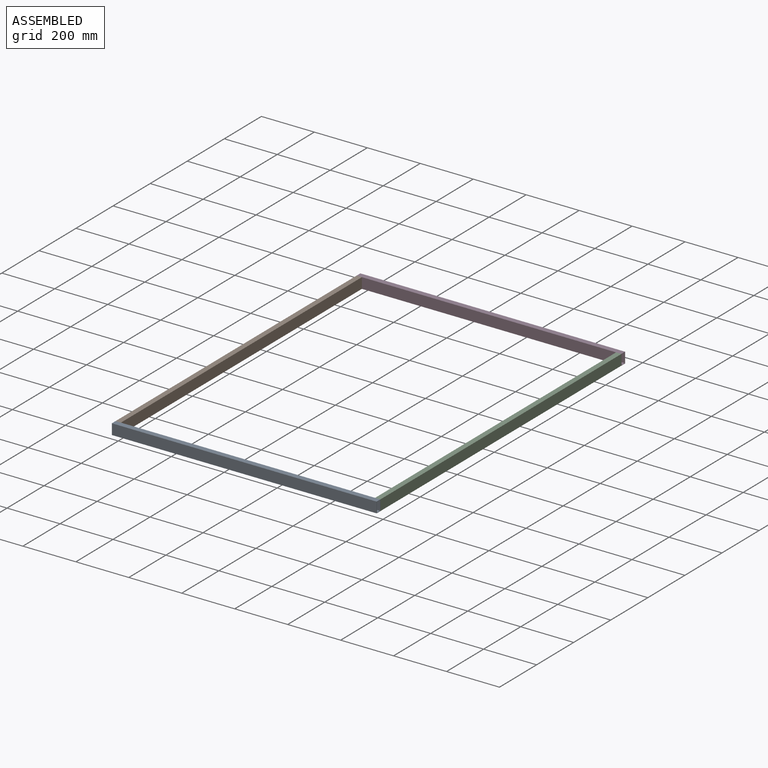
[diagram: assembled view]
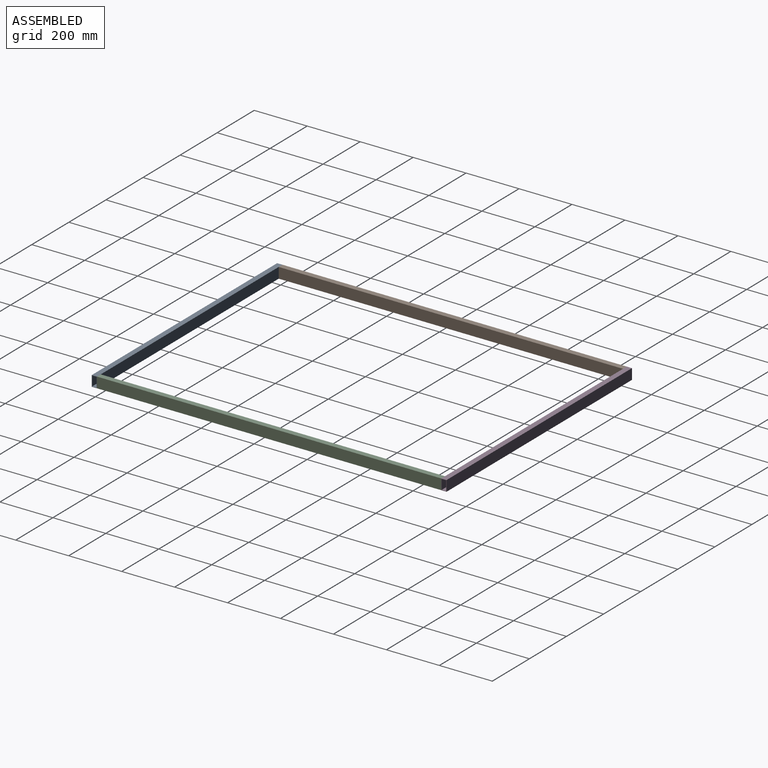
[diagram: assembled view, second angle]
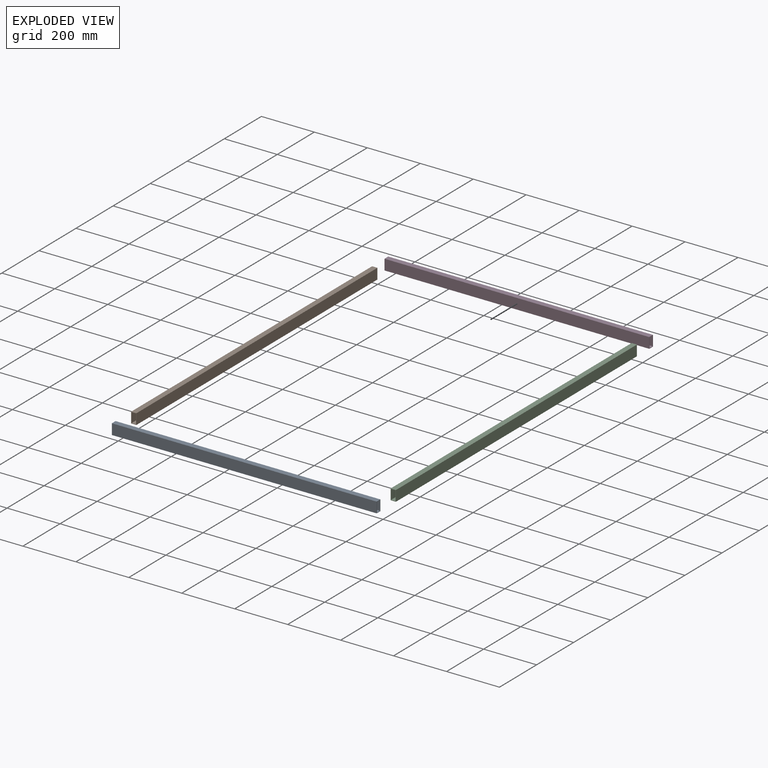
[diagram: exploded view]
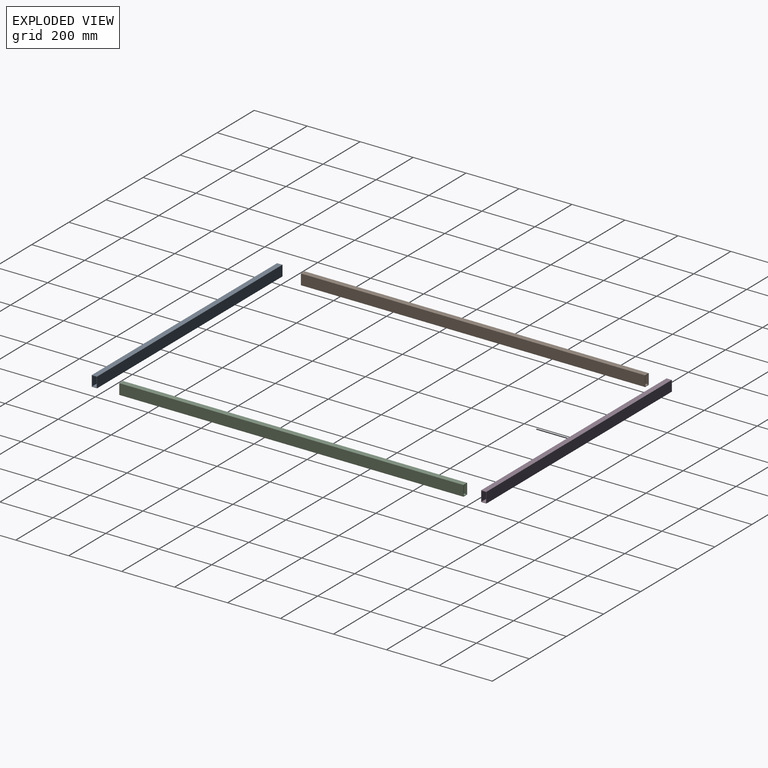
[diagram: exploded view, second angle]
ASSEMBLY  parts=4 mates=3
PART A: 10 faces, bbox 20x1000x40 mm
  f0: plane 1000x37mm, normal (1,0,0), area 37000mm2, adj f1,f7,f8,f9
  f1: plane 1000x17mm, normal (0,0,-1), area 17000mm2, adj f0,f2,f8,f9
  f2: plane 1000x37mm, normal (-1,0,0), area 37000mm2, adj f1,f7,f8,f9
  f3: plane 1000x40mm, normal (1,0,0), area 40000mm2, adj f4,f6,f8,f9
  f4: plane 1000x20mm, normal (0,0,1), area 20000mm2, adj f3,f5,f8,f9
  f5: plane 1000x40mm, normal (-1,0,0), area 40000mm2, adj f4,f6,f8,f9
  f6: plane 1000x20mm, normal (0,0,-1), area 20000mm2, adj f3,f5,f8,f9
  f7: plane 1000x17mm, normal (0,0,1), area 17000mm2, adj f0,f2,f8,f9
  f8: plane 40x20mm, normal (0,-1,0), area 171mm2, adj f0,f1,f2,f3,f4,f5,f6,f7
  f9: plane 40x20mm, normal (0,1,0), area 171mm2, adj f0,f1,f2,f3,f4,f5,f6,f7
PART B: 10 faces, bbox 20x1300x40 mm
  f0: plane 1300x37mm, normal (1,0,0), area 48100mm2, adj f1,f7,f8,f9
  f1: plane 1300x17mm, normal (0,0,-1), area 22100mm2, adj f0,f2,f8,f9
  f2: plane 1300x37mm, normal (-1,0,0), area 48100mm2, adj f1,f7,f8,f9
  f3: plane 1300x40mm, normal (1,0,0), area 52000mm2, adj f4,f6,f8,f9
  f4: plane 1300x20mm, normal (0,0,1), area 26000mm2, adj f3,f5,f8,f9
  f5: plane 1300x40mm, normal (-1,0,0), area 52000mm2, adj f4,f6,f8,f9
  f6: plane 1300x20mm, normal (0,0,-1), area 26000mm2, adj f3,f5,f8,f9
  f7: plane 1300x17mm, normal (0,0,1), area 22100mm2, adj f0,f2,f8,f9
  f8: plane 40x20mm, normal (0,1,0), area 171mm2, adj f0,f1,f2,f3,f4,f5,f6,f7
  f9: plane 40x20mm, normal (0,-1,0), area 171mm2, adj f0,f1,f2,f3,f4,f5,f6,f7
PART C: same geometry as B
PART D: same geometry as A
PLACE A rot(axis=(0,0,1),90deg) t=(-10,-10,0)mm
PLACE B at identity
PLACE C t=(980,0,0)mm
PLACE D rot(axis=(0,0,1),90deg) t=(-10,1310,0)mm
MATE planar D.f5 <-> B.f8  axis (0,-1,0) through (-10,1300,0)mm
MATE planar C.f9 <-> A.f3  axis (0,-1,0) through (990,0,0)mm
MATE planar A.f3 <-> B.f9  axis (0,1,0) through (-10,0,0)mm
